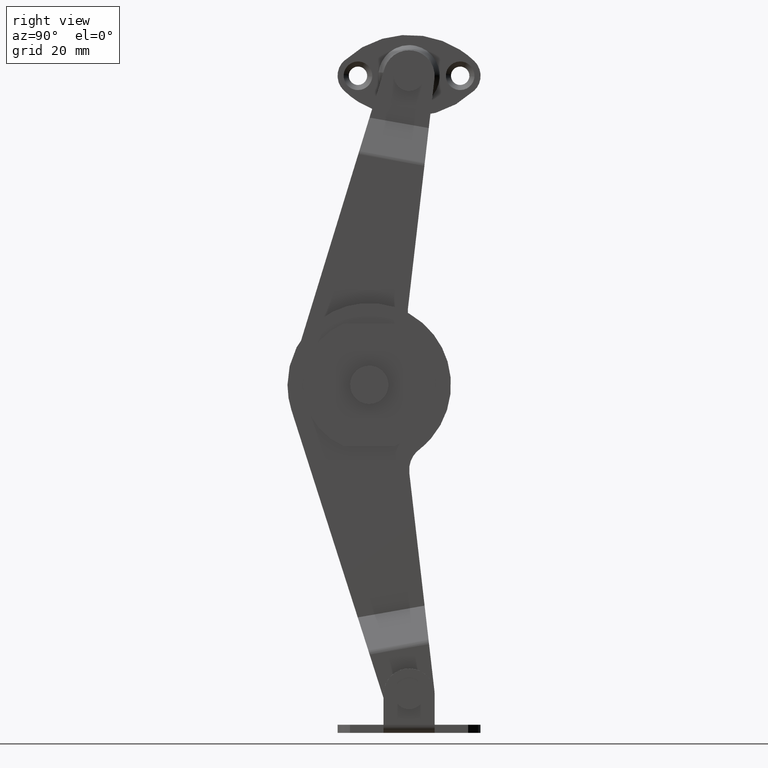
[diagram: clean part render]
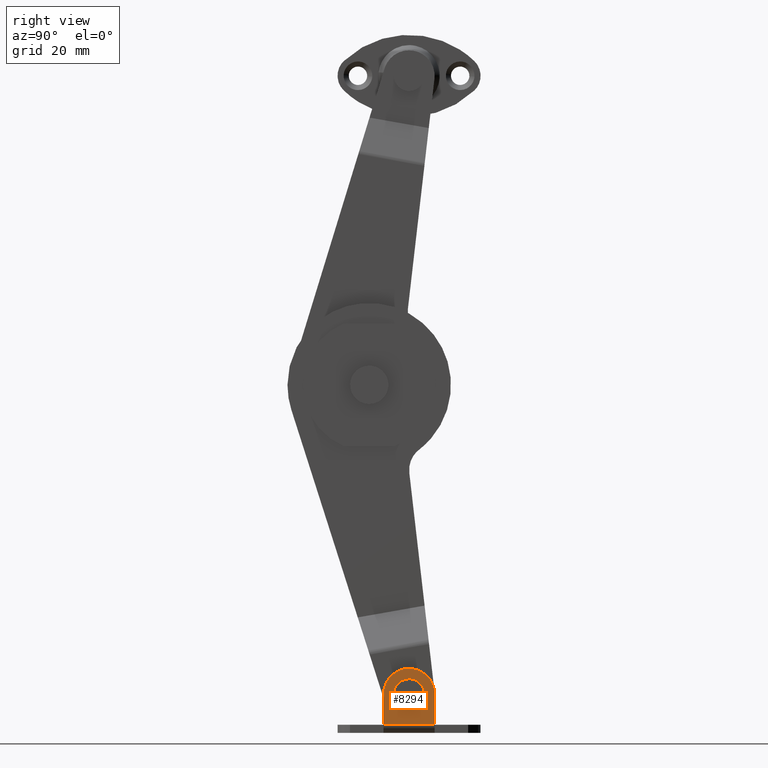
[diagram: same view with one face highlighted and labeled with its STEP entity id]
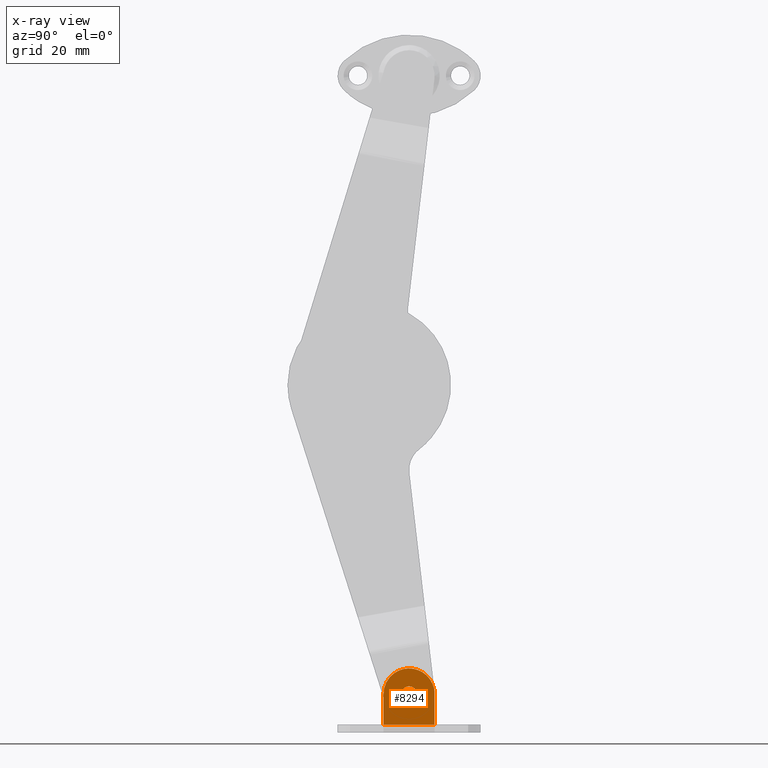
[diagram: x-ray of the same camera — body ghosted, the highlighted face saturated]
A machine part, right view. The second image highlights one B-rep face of the part: STEP entity #8294.
The next image is the same camera in x-ray: the body ghosted, the highlighted face saturated — about 0% of this face is hidden behind the body in this view.
In plain terms, the highlighted face is a freeform B-spline surface patch.
Its self-contained STEP definition (entity closure, byte-faithful):
#7800=CARTESIAN_POINT('',(18.900008999999901,1.489605000530585,-60.382311355528458));
#7801=VERTEX_POINT('',#7800);
#7807=CARTESIAN_POINT('',(18.900008999999901,-0.005770999999868,-59.0));
#7808=VERTEX_POINT('',#7807);
#7809=CARTESIAN_POINT('',(18.900008999999901,-0.005770999999868,-59.0));
#7810=CARTESIAN_POINT('',(18.900008999999908,1.380814735850867,-59.0));
#7811=CARTESIAN_POINT('',(18.900008999999898,1.489605000530585,-60.382311355528458));
#7819=(BOUNDED_CURVE()B_SPLINE_CURVE(2,(#7809,#7810,#7811),.UNSPECIFIED.,.F.,.U.)B_SPLINE_CURVE_WITH_KNOTS((3,3),(0.0,0.236331300431060),.UNSPECIFIED.)CURVE()GEOMETRIC_REPRESENTATION_ITEM()RATIONAL_B_SPLINE_CURVE((1.0,0.723120658841511,0.969723355750868))REPRESENTATION_ITEM(''));
#7820=EDGE_CURVE('',#7808,#7801,#7819,.T.);
#7822=CARTESIAN_POINT('',(18.900008999999901,-1.501147000530320,-60.617688644471542));
#7823=VERTEX_POINT('',#7822);
#7824=CARTESIAN_POINT('',(18.900008999999905,-1.501147000530320,-60.617688644471542));
#7825=CARTESIAN_POINT('',(18.900008999999898,-1.505770999999868,-60.558935161395354));
#7826=CARTESIAN_POINT('',(18.900008999999901,-1.505770999999868,-60.500000000000000));
#7827=CARTESIAN_POINT('',(18.900008999999901,-1.505770999999869,-58.999999999999993));
#7828=CARTESIAN_POINT('',(18.900008999999901,-0.005770999999868,-59.0));
#7836=(BOUNDED_CURVE()B_SPLINE_CURVE(2,(#7824,#7825,#7826,#7827,#7828),.UNSPECIFIED.,.F.,.U.)B_SPLINE_CURVE_WITH_KNOTS((3,2,3),(0.736331300431059,0.750000000000000,1.0),.UNSPECIFIED.)CURVE()GEOMETRIC_REPRESENTATION_ITEM()RATIONAL_B_SPLINE_CURVE((0.969723355750866,0.983986122345035,1.0,0.707106781186548,1.0))REPRESENTATION_ITEM(''));
#7837=EDGE_CURVE('',#7823,#7808,#7836,.T.);
#7913=CARTESIAN_POINT('',(18.900008999999901,-0.005770999999868,-62.0));
#7914=VERTEX_POINT('',#7913);
#7915=CARTESIAN_POINT('',(18.900008999999901,-0.005770999999868,-62.0));
#7916=CARTESIAN_POINT('',(18.900008999999901,-1.392356735850593,-62.000000000000007));
#7917=CARTESIAN_POINT('',(18.900008999999905,-1.501147000530320,-60.617688644471542));
#7925=(BOUNDED_CURVE()B_SPLINE_CURVE(2,(#7915,#7916,#7917),.UNSPECIFIED.,.F.,.U.)B_SPLINE_CURVE_WITH_KNOTS((3,3),(0.500000000000000,0.736331300431059),.UNSPECIFIED.)CURVE()GEOMETRIC_REPRESENTATION_ITEM()RATIONAL_B_SPLINE_CURVE((1.0,0.723120658841513,0.969723355750866))REPRESENTATION_ITEM(''));
#7926=EDGE_CURVE('',#7914,#7823,#7925,.T.);
#7928=CARTESIAN_POINT('',(18.900008999999898,1.489605000530585,-60.382311355528458));
#7929=CARTESIAN_POINT('',(18.900008999999905,1.494229000000132,-60.441064838604639));
#7930=CARTESIAN_POINT('',(18.900008999999901,1.494229000000132,-60.500000000000000));
#7931=CARTESIAN_POINT('',(18.900008999999901,1.494229000000132,-62.000000000000007));
#7932=CARTESIAN_POINT('',(18.900008999999901,-0.005770999999868,-62.0));
#7940=(BOUNDED_CURVE()B_SPLINE_CURVE(2,(#7928,#7929,#7930,#7931,#7932),.UNSPECIFIED.,.F.,.U.)B_SPLINE_CURVE_WITH_KNOTS((3,2,3),(0.236331300431060,0.250000000000000,0.500000000000000),.UNSPECIFIED.)CURVE()GEOMETRIC_REPRESENTATION_ITEM()RATIONAL_B_SPLINE_CURVE((0.969723355750868,0.983986122345036,1.0,0.707106781186548,1.0))REPRESENTATION_ITEM(''));
#7941=EDGE_CURVE('',#7801,#7914,#7940,.T.);
#7963=CARTESIAN_POINT('',(18.900008999999901,5.0,-66.499998000000105));
#7964=VERTEX_POINT('',#7963);
#7980=CARTESIAN_POINT('',(18.900008999999901,-5.0,-66.499998000000105));
#7981=VERTEX_POINT('',#7980);
#7982=CARTESIAN_POINT('',(18.900008999999901,5.0,-66.499998000000105));
#7983=CARTESIAN_POINT('',(18.900008999999901,-5.0,-66.499998000000105));
#7984=QUASI_UNIFORM_CURVE('',1,(#7982,#7983),.UNSPECIFIED.,.F.,.U.);
#7985=EDGE_CURVE('',#7964,#7981,#7984,.T.);
#8030=CARTESIAN_POINT('',(18.900008999999901,-5.0,-60.500000000000000));
#8031=VERTEX_POINT('',#8030);
#8032=CARTESIAN_POINT('',(18.900008999999901,5.0,-60.500000000000000));
#8033=VERTEX_POINT('',#8032);
#8034=CARTESIAN_POINT('',(18.900008999999901,-5.0,-60.500000000000000));
#8035=CARTESIAN_POINT('',(18.900008999999901,-5.000000000000001,-55.500000000000000));
#8036=CARTESIAN_POINT('',(18.900008999999901,-1.491440E-030,-55.500000000000000));
#8037=CARTESIAN_POINT('',(18.900008999999901,5.000000000000001,-55.500000000000000));
#8038=CARTESIAN_POINT('',(18.900008999999901,5.0,-60.500000000000000));
#8046=(BOUNDED_CURVE()B_SPLINE_CURVE(2,(#8034,#8035,#8036,#8037,#8038),.UNSPECIFIED.,.F.,.U.)B_SPLINE_CURVE_WITH_KNOTS((3,2,3),(0.0,0.500000000000000,1.0),.UNSPECIFIED.)CURVE()GEOMETRIC_REPRESENTATION_ITEM()RATIONAL_B_SPLINE_CURVE((1.0,0.707106781186548,1.0,0.707106781186548,1.0))REPRESENTATION_ITEM(''));
#8047=EDGE_CURVE('',#8031,#8033,#8046,.T.);
#8261=CARTESIAN_POINT('',(18.900008999999901,-5.0,-66.499998000000105));
#8262=CARTESIAN_POINT('',(18.900008999999901,-5.0,-60.500000000000000));
#8263=QUASI_UNIFORM_CURVE('',1,(#8261,#8262),.UNSPECIFIED.,.F.,.U.);
#8264=EDGE_CURVE('',#7981,#8031,#8263,.T.);
#8273=CARTESIAN_POINT('',(18.900008999999901,-5.499499980618061,-54.950550042621053));
#8274=CARTESIAN_POINT('',(18.900008999999901,-5.499499980618061,-67.049449825984681));
#8275=CARTESIAN_POINT('',(18.900008999999901,5.499500248838962,-54.950550042621053));
#8276=CARTESIAN_POINT('',(18.900008999999901,5.499500248838962,-67.049449825984681));
#8277=B_SPLINE_SURFACE_WITH_KNOTS('',1,1,((#8273,#8275),(#8274,#8276)),.UNSPECIFIED.,.F.,.F.,.U.,(2,2),(2,2),(0.0,12.098899783363629),(0.0,10.999000229457019),.UNSPECIFIED.);
#8278=CARTESIAN_POINT('',(18.900008999999901,5.0,-66.499998000000105));
#8279=CARTESIAN_POINT('',(18.900008999999901,5.0,-60.500000000000000));
#8280=QUASI_UNIFORM_CURVE('',1,(#8278,#8279),.UNSPECIFIED.,.F.,.U.);
#8281=EDGE_CURVE('',#7964,#8033,#8280,.T.);
#8282=ORIENTED_EDGE('',*,*,#8281,.T.);
#8283=ORIENTED_EDGE('',*,*,#8047,.F.);
#8284=ORIENTED_EDGE('',*,*,#8264,.F.);
#8285=ORIENTED_EDGE('',*,*,#7985,.F.);
#8286=EDGE_LOOP('',(#8282,#8283,#8284,#8285));
#8287=FACE_OUTER_BOUND('',#8286,.T.);
#8288=ORIENTED_EDGE('',*,*,#7926,.T.);
#8289=ORIENTED_EDGE('',*,*,#7837,.T.);
#8290=ORIENTED_EDGE('',*,*,#7820,.T.);
#8291=ORIENTED_EDGE('',*,*,#7941,.T.);
#8292=EDGE_LOOP('',(#8288,#8289,#8290,#8291));
#8293=FACE_BOUND('',#8292,.T.);
#8294=ADVANCED_FACE('',(#8287,#8293),#8277,.T.);